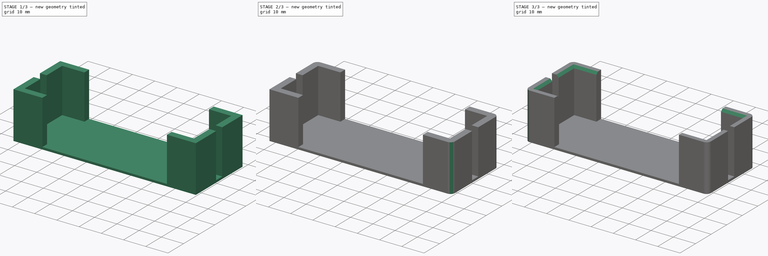
[diagram: build sequence overview — one tinted view per stage of 3, left to right]
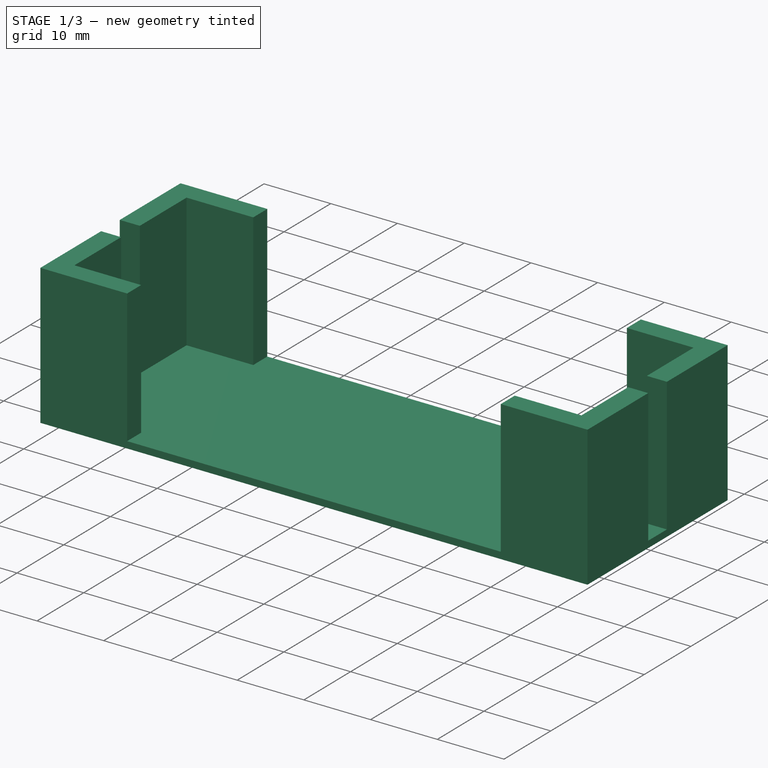
[diagram: stage 1 of 3 — iso view after this stage's code; geometry added in this stage tinted green]
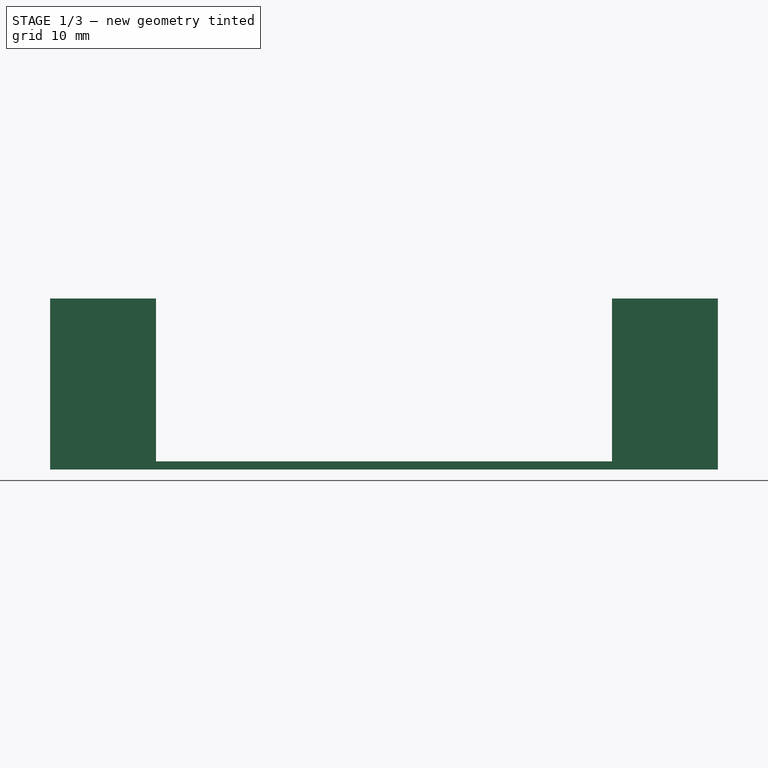
[diagram: stage 1 of 3 — front view after this stage's code; geometry added in this stage tinted green]
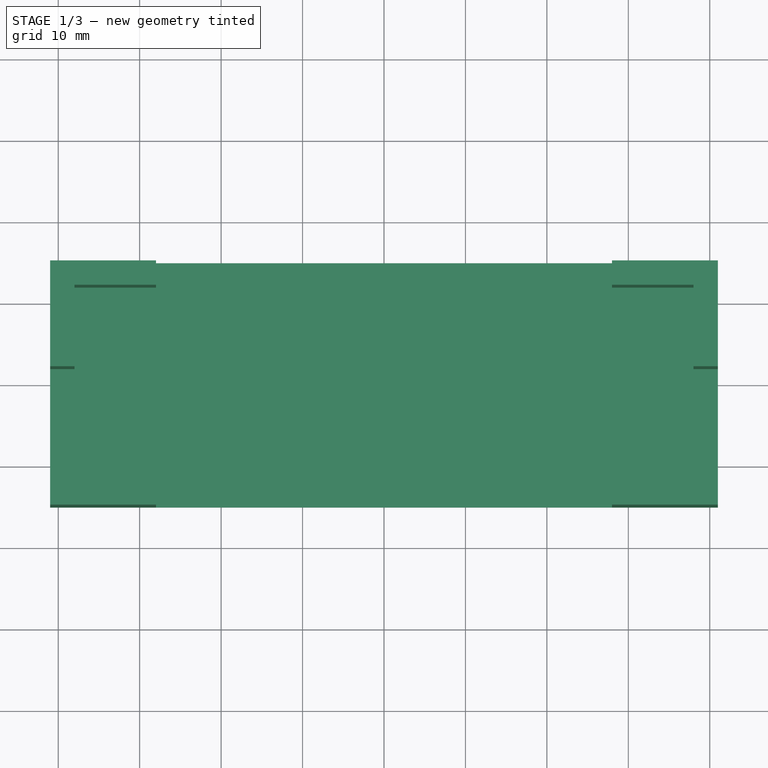
[diagram: stage 1 of 3 — top view after this stage's code; geometry added in this stage tinted green]
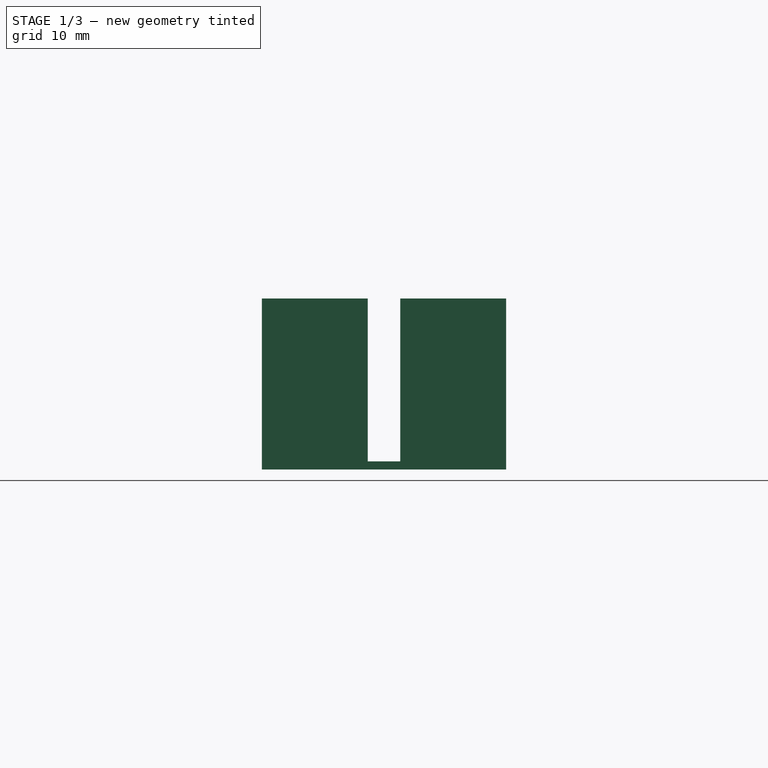
[diagram: stage 1 of 3 — right view after this stage's code; geometry added in this stage tinted green]
FCSTD DOCUMENT  (FreeCAD 0.16R6659 (Git))
Label: BHolder
License: All rights reserved
LicenseURL: http://en.wikipedia.org/wiki/All_rights_reserved
objects: Sketcher::SketchObject×2, PartDesign::Pad×2, PartDesign::Fillet×2, PartDesign::Chamfer×1
note: 9 computed .brp shape members not serialized (recipe doc carries the construction recipe); baked Part::Feature solids carry a one-line shape summary decoded from their .brp

FEATURE [Sketcher::SketchObject] Sketch
  sketch-geometry (4):
    g0: LineSegment StartX=-41 StartY=-15 StartZ=0 EndX=41 EndY=-15 EndZ=0
    g1: LineSegment StartX=41 StartY=-15 StartZ=0 EndX=41 EndY=15 EndZ=0
    g2: LineSegment StartX=41 StartY=15 StartZ=0 EndX=-41 EndY=15 EndZ=0
    g3: LineSegment StartX=-41 StartY=15 StartZ=0 EndX=-41 EndY=-15 EndZ=0
  constraints (11):
    c: Coincident(g0,g1)
    c: Coincident(g1,g2)
    c: Coincident(g2,g3)
    c: Coincident(g3,g0)
    c: Horizontal(g0)
    c: Horizontal(g2)
    c: Vertical(g1)
    c: Vertical(g3)
    c: Symmetric(g0,g1,g-1)
    c: DistanceY(g3) = -30
    c: DistanceX(g2) = -82
FEATURE [PartDesign::Pad] Pad
  Length = 1
  Length2 = 100
  Sketch = -> Sketch
  Type = 0
FEATURE [Sketcher::SketchObject] Sketch001
  ExternalGeometry = -> [Pad]
  Placement = pos=(0,0,1) rot=(0,0,1;0rad)
  Support = -> Pad [Face6]
  sketch-geometry (24):
    g0: LineSegment StartX=-41 StartY=15 StartZ=0 EndX=-41 EndY=2 EndZ=0
    g1: LineSegment StartX=-41 StartY=2 StartZ=0 EndX=-38 EndY=2 EndZ=0
    g2: LineSegment StartX=-38 StartY=2 StartZ=0 EndX=-38 EndY=12 EndZ=0
    g3: LineSegment StartX=-38 StartY=12 StartZ=0 EndX=-28 EndY=12 EndZ=0
    g4: LineSegment StartX=-28 StartY=12 StartZ=0 EndX=-28 EndY=15 EndZ=0
    g5: LineSegment StartX=-28 StartY=15 StartZ=0 EndX=-41 EndY=15 EndZ=0
    g6: LineSegment StartX=28 StartY=-12 StartZ=0 EndX=28 EndY=-15 EndZ=0
    g7: LineSegment StartX=28 StartY=-15 StartZ=0 EndX=41 EndY=-15 EndZ=0
    g8: LineSegment StartX=41 StartY=-15 StartZ=0 EndX=41 EndY=-2 EndZ=0
    g9: LineSegment StartX=41 StartY=-2 StartZ=0 EndX=38 EndY=-2 EndZ=0
    g10: LineSegment StartX=38 StartY=-2 StartZ=0 EndX=38 EndY=-12 EndZ=0
    g11: LineSegment StartX=38 StartY=-12 StartZ=0 EndX=28 EndY=-12 EndZ=0
    g12: LineSegment StartX=-41 StartY=-2 StartZ=0 EndX=-41 EndY=-15 EndZ=0
    g13: LineSegment StartX=-41 StartY=-15 StartZ=0 EndX=-28 EndY=-15 EndZ=0
    g14: LineSegment StartX=-28 StartY=-15 StartZ=0 EndX=-28 EndY=-12 EndZ=0
    g15: LineSegment StartX=-28 StartY=-12 StartZ=0 EndX=-38 EndY=-12 EndZ=0
    g16: LineSegment StartX=-38 StartY=-12 StartZ=0 EndX=-38 EndY=-2 EndZ=0
    g17: LineSegment StartX=-38 StartY=-2 StartZ=0 EndX=-41 EndY=-2 EndZ=0
    g18: LineSegment StartX=38 StartY=2 StartZ=0 EndX=41 EndY=2 EndZ=0
    g19: LineSegment StartX=41 StartY=2 StartZ=0 EndX=41 EndY=15 EndZ=0
    g20: LineSegment StartX=41 StartY=15 StartZ=0 EndX=28 EndY=15 EndZ=0
    g21: LineSegment StartX=28 StartY=15 StartZ=0 EndX=28 EndY=12 EndZ=0
    g22: LineSegment StartX=28 StartY=12 StartZ=0 EndX=38 EndY=12 EndZ=0
    g23: LineSegment StartX=38 StartY=12 StartZ=0 EndX=38 EndY=2 EndZ=0
  constraints (68):
    c: Vertical(g0)
    c: Coincident(g0,g1)
    c: Horizontal(g1)
    c: Coincident(g1,g2)
    c: Vertical(g2)
    c: Coincident(g2,g3)
    c: Horizontal(g3)
    c: Coincident(g3,g4)
    c: Vertical(g4)
    c: Coincident(g4,g5)
    c: Coincident(g5,g0)
    c: Horizontal(g5)
    c: Equal(g3,g2)
    c: Equal(g1,g4)
    c: Coincident(g0,g-4)
    c: Vertical(g6)
    c: Coincident(g6,g7)
    c: Horizontal(g7)
    c: Coincident(g7,g8)
    c: Vertical(g8)
    c: Coincident(g8,g9)
    c: Horizontal(g9)
    c: Coincident(g9,g10)
    c: Vertical(g10)
    c: Coincident(g10,g11)
    c: Horizontal(g11)
    c: Coincident(g11,g6)
    c: Equal(g11,g10)
    c: Coincident(g7,g-6)
    c: Equal(g11,g3)
    c: Equal(g9,g4)
    c: Vertical(g12)
    c: Coincident(g12,g13)
    c: Horizontal(g13)
    c: Coincident(g13,g14)
    c: Vertical(g14)
    c: Coincident(g14,g15)
    c: Horizontal(g15)
    c: Coincident(g15,g16)
    c: Vertical(g16)
    c: Coincident(g16,g17)
    c: Coincident(g17,g12)
    c: Horizontal(g17)
    c: Equal(g13,g12)
    c: Equal(g14,g17)
    c: Coincident(g12,g-6)
    c: Equal(g17,g1)
    c: Equal(g16,g2)
    c: DistanceX(g1) = 3
    c: Horizontal(g18)
    c: Coincident(g18,g19)
    c: Vertical(g19)
    c: Coincident(g19,g20)
    c: Horizontal(g20)
    c: Coincident(g20,g21)
    c: Vertical(g21)
    c: Coincident(g21,g22)
    c: Horizontal(g22)
    c: Coincident(g22,g23)
    c: Vertical(g23)
    c: Coincident(g23,g18)
    c: Equal(g23,g22)
    c: Coincident(g19,g-5)
    c: Equal(g9,g18)
    c: Equal(g22,g11)
    c: DistanceX(g3) = 10
    c: Equal(g6,g9)
    c: Equal(g21,g18)
FEATURE [PartDesign::Pad] Pad001
  Length = 20
  Length2 = 100
  Sketch = -> Sketch001
  Type = 0
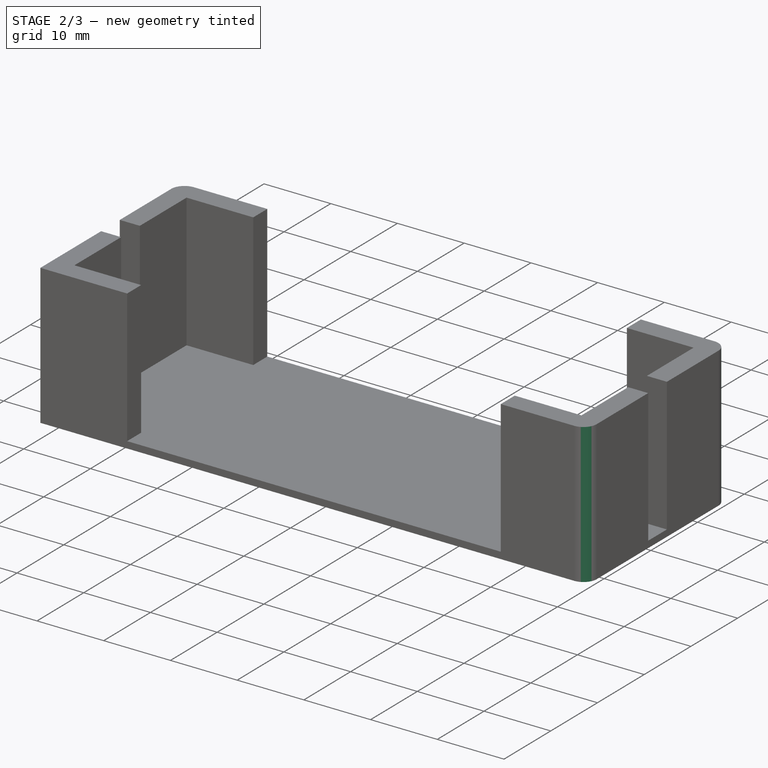
[diagram: stage 2 of 3 — iso view after this stage's code; geometry added in this stage tinted green]
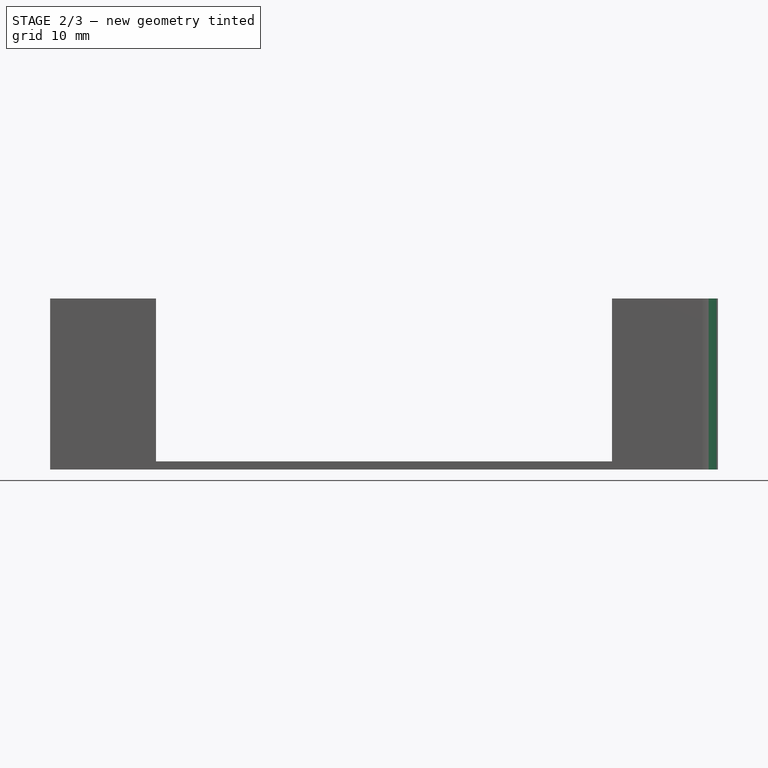
[diagram: stage 2 of 3 — front view after this stage's code; geometry added in this stage tinted green]
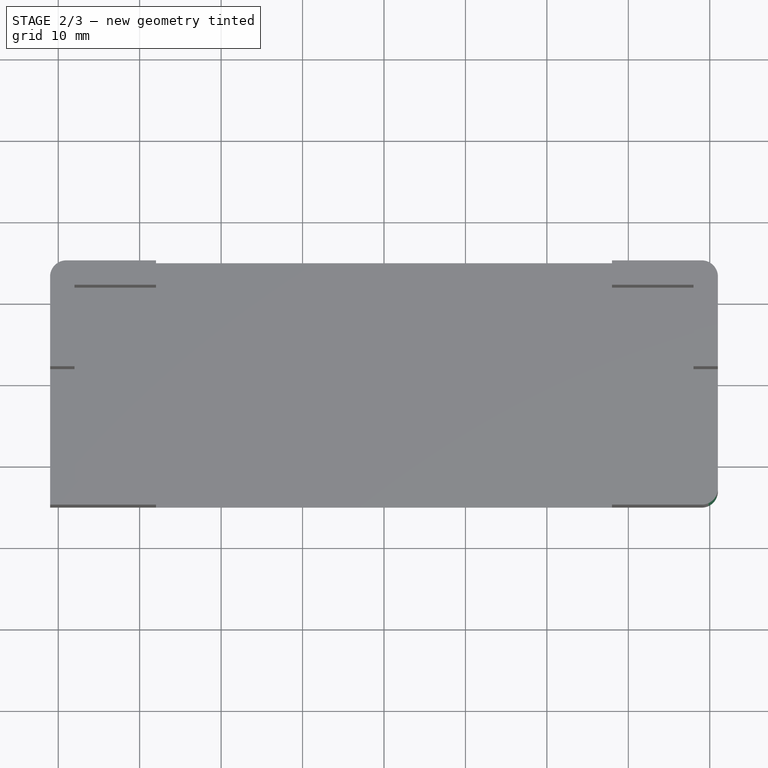
[diagram: stage 2 of 3 — top view after this stage's code; geometry added in this stage tinted green]
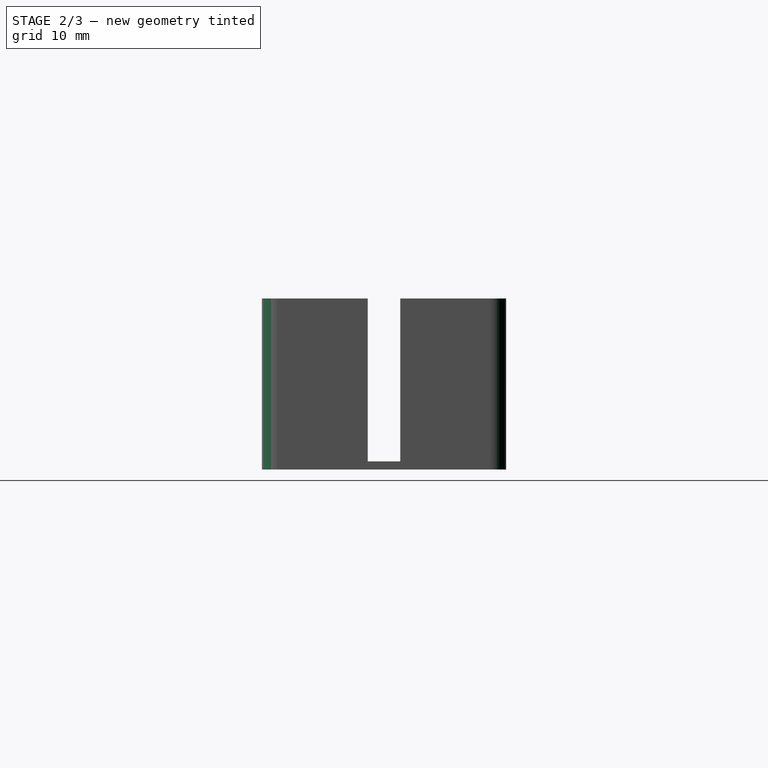
[diagram: stage 2 of 3 — right view after this stage's code; geometry added in this stage tinted green]
FEATURE [PartDesign::Fillet] Fillet
  Base = -> Pad001 [Edge42,Edge47,Edge52]
  Radius = 2
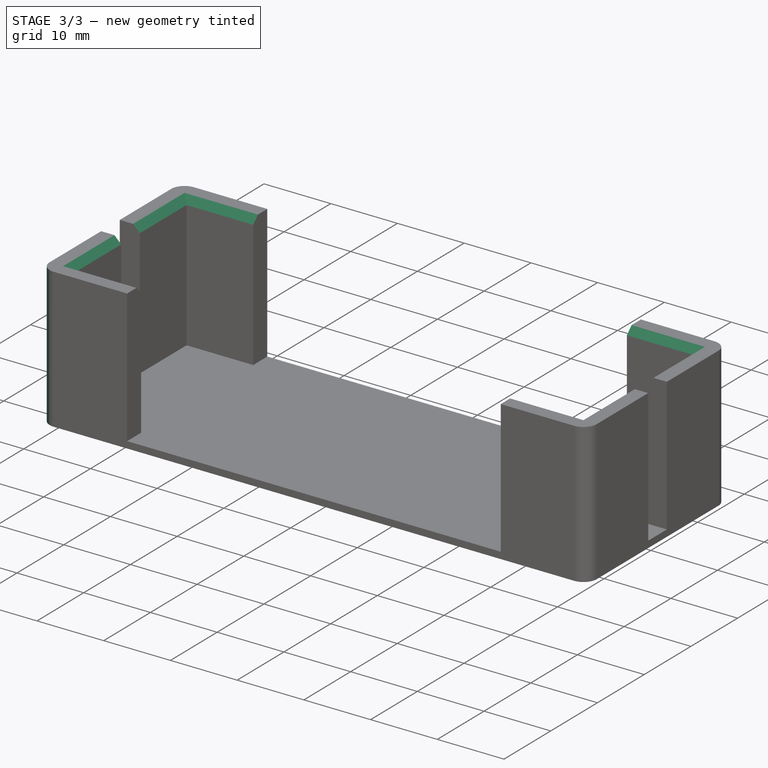
[diagram: stage 3 of 3 — iso view after this stage's code; geometry added in this stage tinted green]
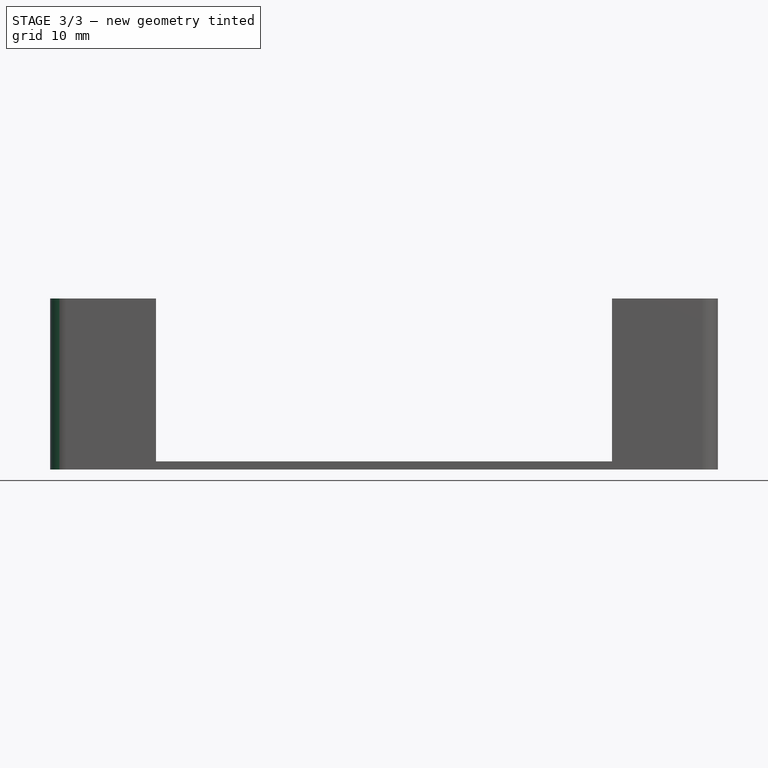
[diagram: stage 3 of 3 — front view after this stage's code; geometry added in this stage tinted green]
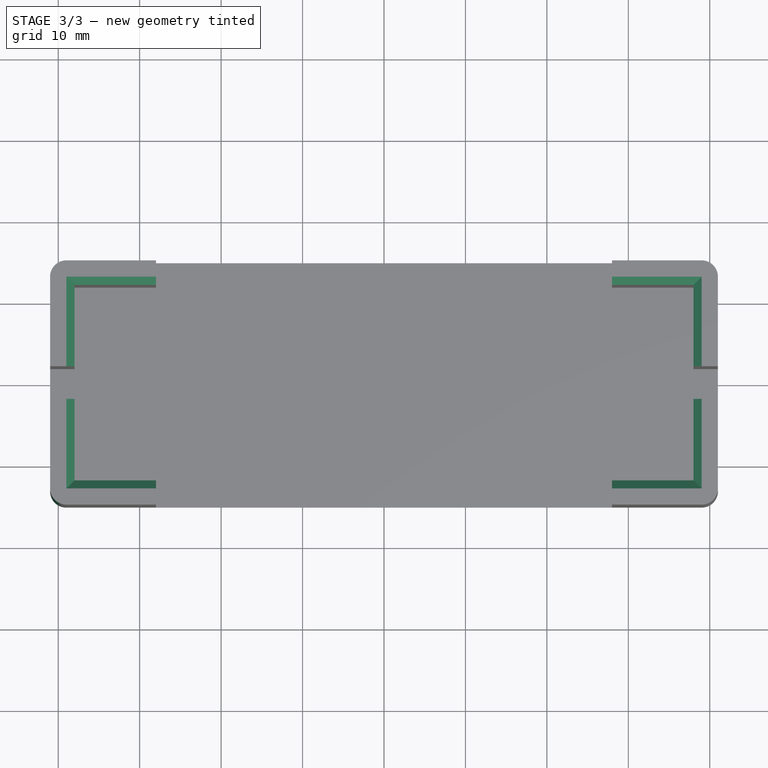
[diagram: stage 3 of 3 — top view after this stage's code; geometry added in this stage tinted green]
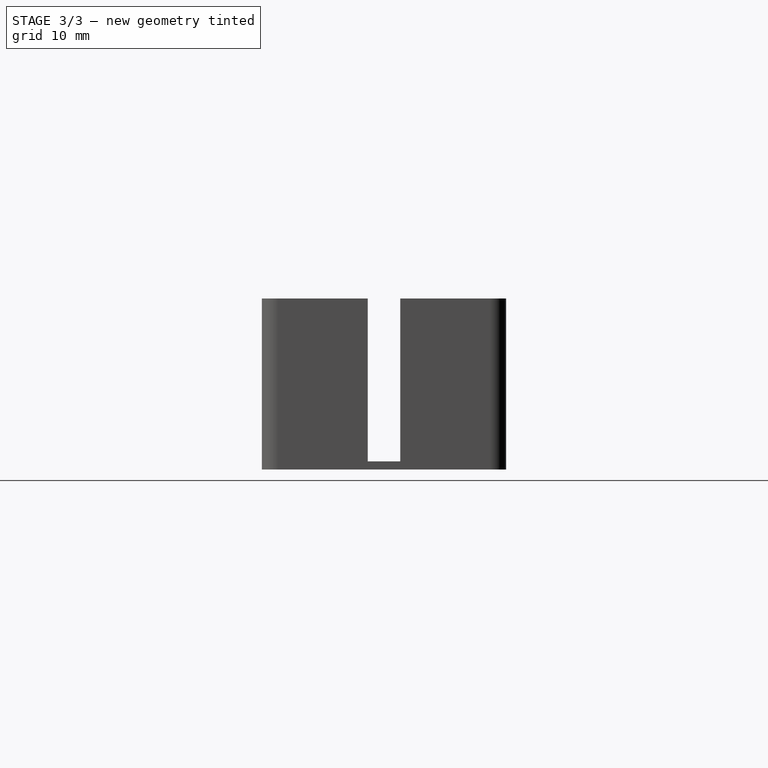
[diagram: stage 3 of 3 — right view after this stage's code; geometry added in this stage tinted green]
FEATURE [PartDesign::Fillet] Fillet001
  Base = -> Fillet [Edge33]
  Radius = 2
FEATURE [PartDesign::Chamfer] Chamfer
  Base = -> Fillet001 [Edge101,Edge99,Edge80,Edge81,Edge84,Edge86,Edge92,Edge94]
  Size = 1
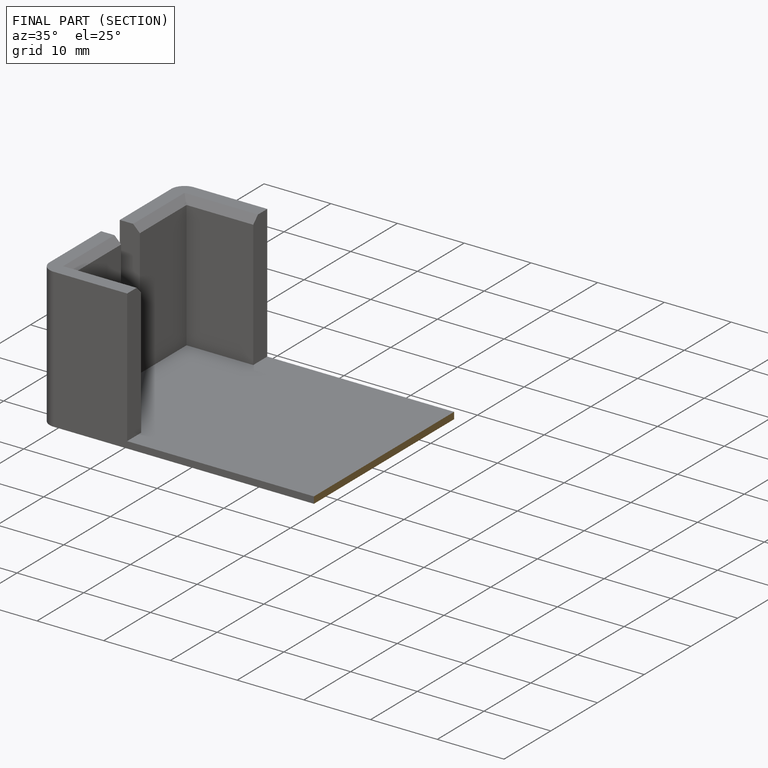
[diagram: finished part — half-section view (interior)]
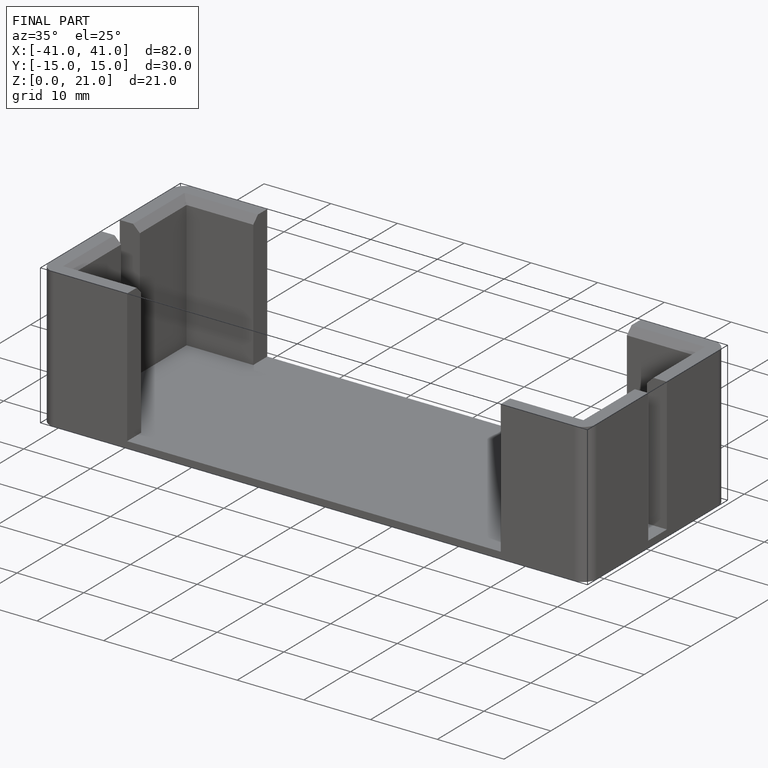
[diagram: finished part — iso view with bounding-box wireframe]
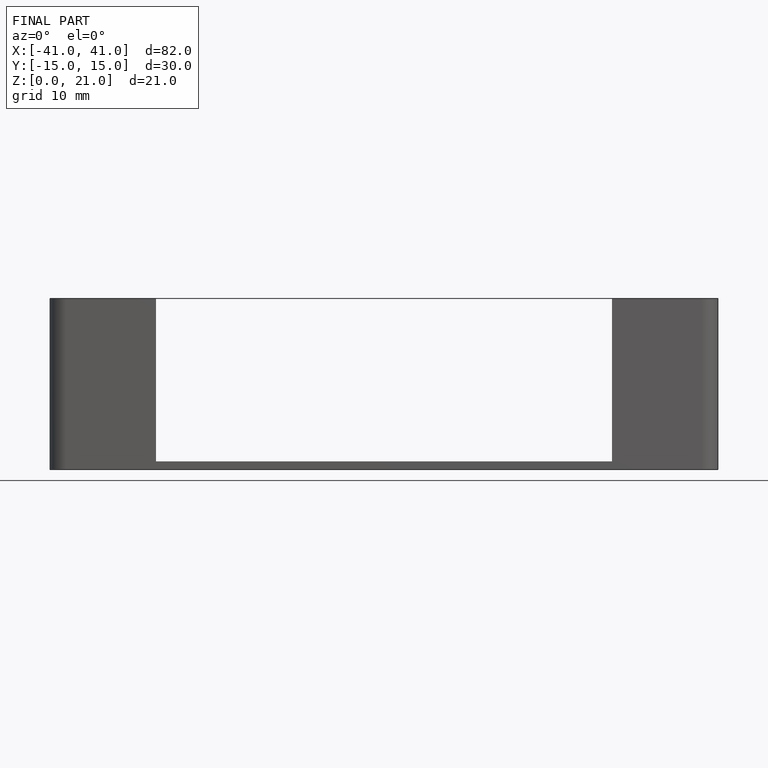
[diagram: finished part — front view with bounding-box wireframe]
